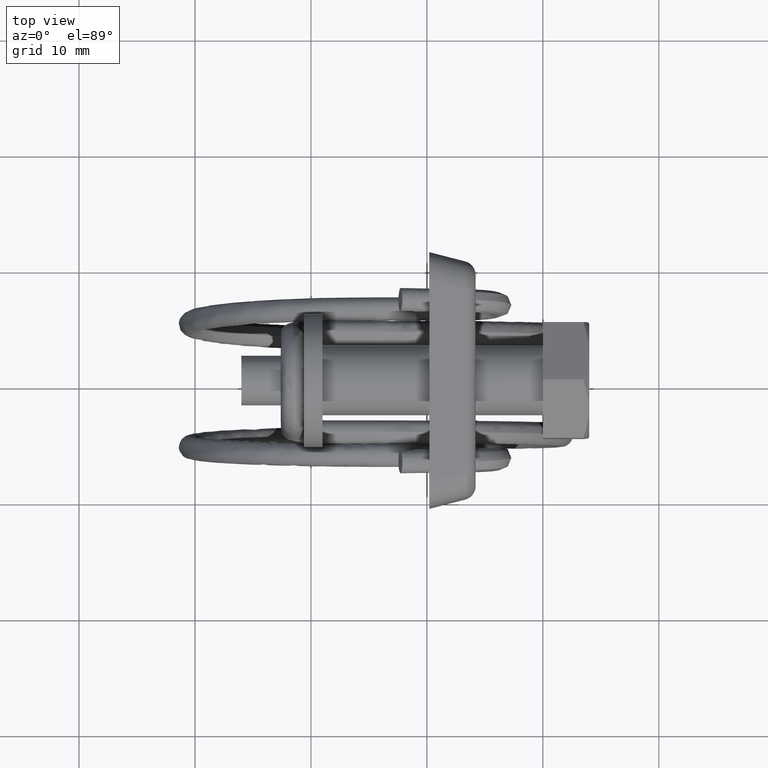
[diagram: clean part render]
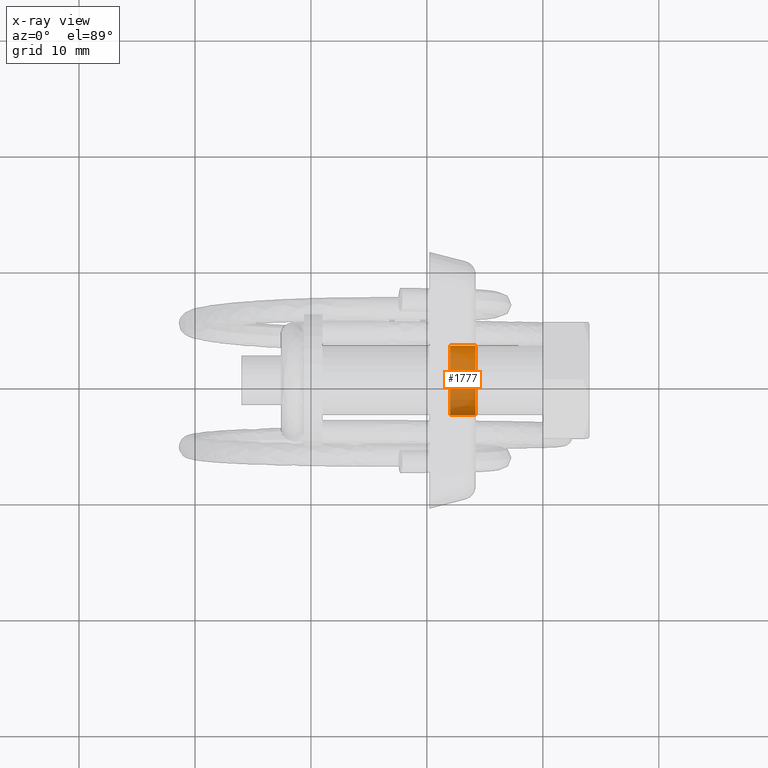
[diagram: x-ray — body ghosted, one internal face saturated and labeled with its STEP entity id]
A machine part, top view, then the same camera in x-ray: the body is ghosted and one INTERNAL B-rep face — a face not visible from any outside direction — is saturated and labeled: STEP entity #1777.
In plain terms, the highlighted face is a freeform B-spline surface patch.
Its self-contained STEP definition (entity closure, byte-faithful):
#1675=CARTESIAN_POINT('',(-36.955000000000027,-2.979028579091000,0.354102703970275));
#1676=CARTESIAN_POINT('',(-36.955000000000013,-2.989162846345817,0.268844185913933));
#1677=CARTESIAN_POINT('',(-36.955000000000013,-2.994404395265600,0.183145618604571));
#1678=CARTESIAN_POINT('',(-36.955000000000005,-3.177550013870171,-2.811258776661029));
#1679=CARTESIAN_POINT('',(-36.955000000000013,-0.183145618604571,-2.994404395265600));
#1680=CARTESIAN_POINT('',(-36.955000000000005,2.811258776661029,-3.177550013870171));
#1681=CARTESIAN_POINT('',(-36.955000000000013,2.994404395265600,-0.183145618604571));
#1682=CARTESIAN_POINT('',(-34.643625000000014,-2.979028579091000,0.354102703970275));
#1683=CARTESIAN_POINT('',(-34.643625000000000,-2.989162846345817,0.268844185913933));
#1684=CARTESIAN_POINT('',(-34.643624999999993,-2.994404395265600,0.183145618604571));
#1685=CARTESIAN_POINT('',(-34.643624999999986,-3.177550013870171,-2.811258776661029));
#1686=CARTESIAN_POINT('',(-34.643624999999993,-0.183145618604571,-2.994404395265600));
#1687=CARTESIAN_POINT('',(-34.643624999999986,2.811258776661029,-3.177550013870171));
#1688=CARTESIAN_POINT('',(-34.643624999999993,2.994404395265600,-0.183145618604571));
#1696=(BOUNDED_SURFACE()B_SPLINE_SURFACE(2,1,((#1675,#1682),(#1676,#1683),(#1677,#1684),(#1678,#1685),(#1679,#1686),(#1680,#1687),(#1681,#1688)),.UNSPECIFIED.,.F.,.F.,.U.)B_SPLINE_SURFACE_WITH_KNOTS((3,2,2,3),(2,2),(0.0,0.198822509939086,5.169385258416225,10.139948006893370),(0.0,2.311375000000024),.UNSPECIFIED.)GEOMETRIC_REPRESENTATION_ITEM()RATIONAL_B_SPLINE_SURFACE(((0.977505800795127,0.977505800795127),(0.988284271247462,0.988284271247462),(1.0,1.0),(0.707106781186548,0.707106781186548),(1.0,1.0),(0.707106781186548,0.707106781186548),(1.0,1.0)))REPRESENTATION_ITEM('')SURFACE());
#1697=CARTESIAN_POINT('',(-36.900000000000013,-2.979028575960327,0.354102730308290));
#1698=VERTEX_POINT('',#1697);
#1699=CARTESIAN_POINT('',(-36.900000000000013,0.0,-3.0));
#1700=VERTEX_POINT('',#1699);
#1701=CARTESIAN_POINT('',(-36.900000000000006,-2.979028575960327,0.354102730308290));
#1702=CARTESIAN_POINT('',(-36.900000000000013,-2.999999999999999,0.177672385572187));
#1703=CARTESIAN_POINT('',(-36.900000000000013,-3.0,0.0));
#1704=CARTESIAN_POINT('',(-36.900000000000006,-3.0,-3.0));
#1705=CARTESIAN_POINT('',(-36.900000000000013,0.0,-3.0));
#1713=(BOUNDED_CURVE()B_SPLINE_CURVE(2,(#1701,#1702,#1703,#1704,#1705),.UNSPECIFIED.,.F.,.U.)B_SPLINE_CURVE_WITH_KNOTS((3,2,3),(0.729562470527281,0.750000000000000,1.0),.UNSPECIFIED.)CURVE()GEOMETRIC_REPRESENTATION_ITEM()RATIONAL_B_SPLINE_CURVE((0.956026748330571,0.976055944832562,1.0,0.707106781186548,1.0))REPRESENTATION_ITEM(''));
#1714=EDGE_CURVE('',#1698,#1700,#1713,.T.);
#1715=ORIENTED_EDGE('',*,*,#1714,.F.);
#1716=CARTESIAN_POINT('',(-34.700000000000003,-2.979028575960326,0.354102730308290));
#1717=VERTEX_POINT('',#1716);
#1718=CARTESIAN_POINT('',(-36.900000000000013,-2.979028575960327,0.354102730308290));
#1719=CARTESIAN_POINT('',(-34.700000000000003,-2.979028575960326,0.354102730308290));
#1720=QUASI_UNIFORM_CURVE('',1,(#1718,#1719),.UNSPECIFIED.,.F.,.U.);
#1721=EDGE_CURVE('',#1698,#1717,#1720,.T.);
#1722=ORIENTED_EDGE('',*,*,#1721,.T.);
#1723=CARTESIAN_POINT('',(-34.700000000000003,0.0,-3.0));
#1724=VERTEX_POINT('',#1723);
#1725=CARTESIAN_POINT('',(-34.700000000000003,-2.979028575960326,0.354102730308290));
#1726=CARTESIAN_POINT('',(-34.700000000000003,-3.000000000000000,0.177672385572188));
#1727=CARTESIAN_POINT('',(-34.700000000000003,-3.0,0.0));
#1728=CARTESIAN_POINT('',(-34.700000000000003,-3.0,-3.0));
#1729=CARTESIAN_POINT('',(-34.700000000000003,0.0,-3.0));
#1737=(BOUNDED_CURVE()B_SPLINE_CURVE(2,(#1725,#1726,#1727,#1728,#1729),.UNSPECIFIED.,.F.,.U.)B_SPLINE_CURVE_WITH_KNOTS((3,2,3),(0.229562470527281,0.250000000000000,0.500000000000000),.UNSPECIFIED.)CURVE()GEOMETRIC_REPRESENTATION_ITEM()RATIONAL_B_SPLINE_CURVE((0.956026748330571,0.976055944832562,1.0,0.707106781186548,1.0))REPRESENTATION_ITEM(''));
#1738=EDGE_CURVE('',#1717,#1724,#1737,.T.);
#1739=ORIENTED_EDGE('',*,*,#1738,.T.);
#1740=CARTESIAN_POINT('',(-34.700000000000003,2.994404395263818,-0.183145618633717));
#1741=VERTEX_POINT('',#1740);
#1742=CARTESIAN_POINT('',(-34.700000000000003,0.0,-3.0));
#1743=CARTESIAN_POINT('',(-34.700000000000010,2.822118200662052,-3.000000000000001));
#1744=CARTESIAN_POINT('',(-34.700000000000003,2.994404395263818,-0.183145618633717));
#1752=(BOUNDED_CURVE()B_SPLINE_CURVE(2,(#1742,#1743,#1744),.UNSPECIFIED.,.F.,.U.)B_SPLINE_CURVE_WITH_KNOTS((3,3),(0.500000000000000,0.739332962238610),.UNSPECIFIED.)CURVE()GEOMETRIC_REPRESENTATION_ITEM()RATIONAL_B_SPLINE_CURVE((1.0,0.719603993287100,0.976072041666004))REPRESENTATION_ITEM(''));
#1753=EDGE_CURVE('',#1724,#1741,#1752,.T.);
#1754=ORIENTED_EDGE('',*,*,#1753,.T.);
#1755=CARTESIAN_POINT('',(-36.900000000000013,2.994404395263818,-0.183145618633717));
#1756=VERTEX_POINT('',#1755);
#1757=CARTESIAN_POINT('',(-36.900000000000013,2.994404395263818,-0.183145618633717));
#1758=CARTESIAN_POINT('',(-34.700000000000003,2.994404395263818,-0.183145618633717));
#1759=QUASI_UNIFORM_CURVE('',1,(#1757,#1758),.UNSPECIFIED.,.F.,.U.);
#1760=EDGE_CURVE('',#1756,#1741,#1759,.T.);
#1761=ORIENTED_EDGE('',*,*,#1760,.F.);
#1762=CARTESIAN_POINT('',(-36.900000000000013,0.0,-3.0));
#1763=CARTESIAN_POINT('',(-36.899999999999999,2.822118200662042,-2.999999999999999));
#1764=CARTESIAN_POINT('',(-36.899999999999999,2.994404395263818,-0.183145618633717));
#1772=(BOUNDED_CURVE()B_SPLINE_CURVE(2,(#1762,#1763,#1764),.UNSPECIFIED.,.F.,.U.)B_SPLINE_CURVE_WITH_KNOTS((3,3),(0.0,0.239332962238609),.UNSPECIFIED.)CURVE()GEOMETRIC_REPRESENTATION_ITEM()RATIONAL_B_SPLINE_CURVE((1.0,0.719603993287101,0.976072041666003))REPRESENTATION_ITEM(''));
#1773=EDGE_CURVE('',#1700,#1756,#1772,.T.);
#1774=ORIENTED_EDGE('',*,*,#1773,.F.);
#1775=EDGE_LOOP('',(#1715,#1722,#1739,#1754,#1761,#1774));
#1776=FACE_OUTER_BOUND('',#1775,.T.);
#1777=ADVANCED_FACE('',(#1776),#1696,.F.);